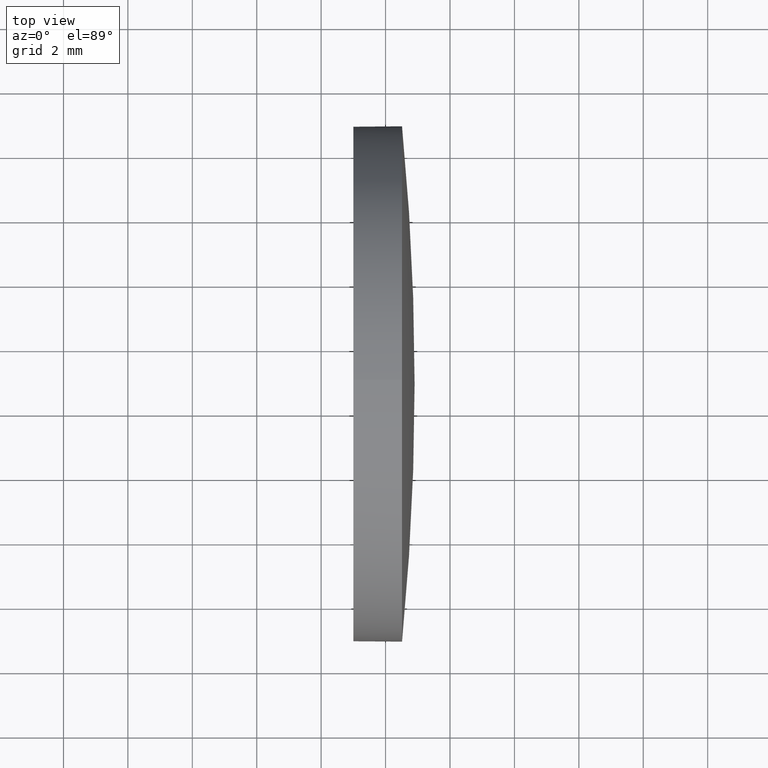
[diagram: clean part render]
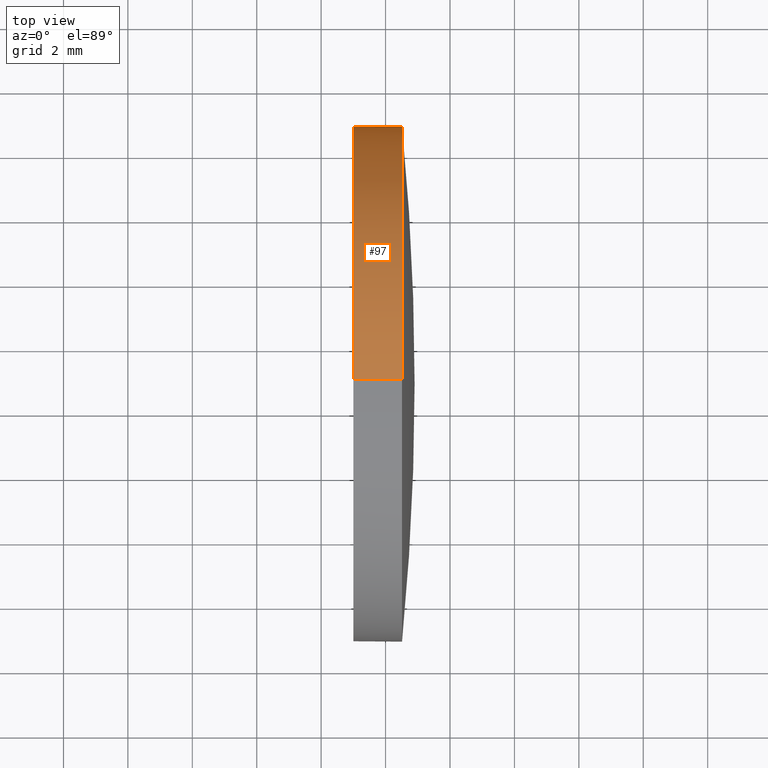
[diagram: same view with one face highlighted and labeled with its STEP entity id]
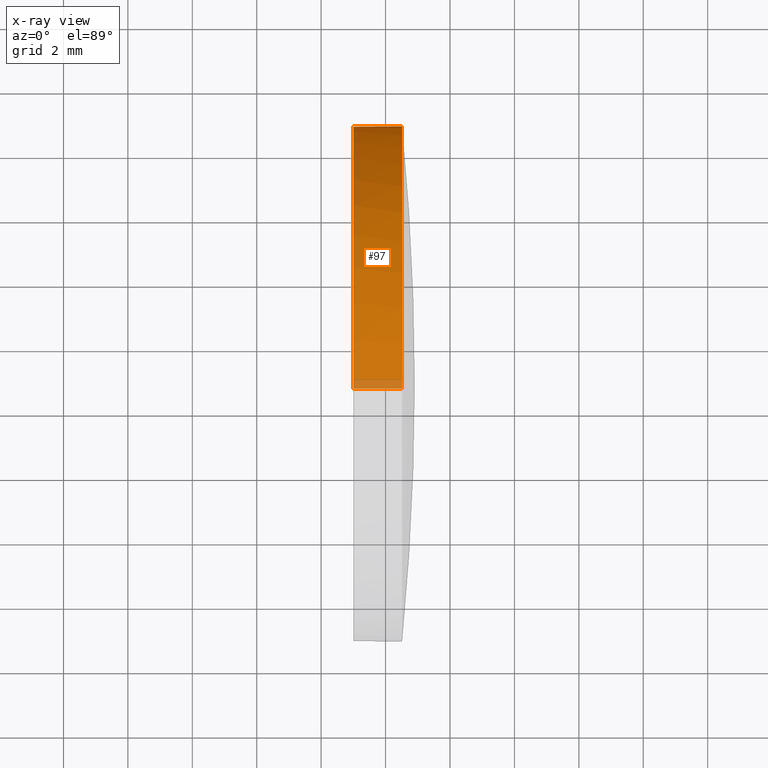
[diagram: x-ray of the same camera — body ghosted, the highlighted face saturated]
A machine part, top view. The second image highlights one B-rep face of the part: STEP entity #97.
The next image is the same camera in x-ray: the body ghosted, the highlighted face saturated — about 3% of this face is hidden behind the body in this view.
In plain terms, the highlighted cylindrical surface (partial cylindrical patch) has radius 8 mm, axis along (-1, -0, -0).
Its self-contained STEP definition (entity closure, byte-faithful):
#1 = EDGE_CURVE ( 'NONE', #40, #123, #94, .T. ) ;
#3 = CARTESIAN_POINT ( 'NONE',  ( 680.5108542720965900, 360.8508104614297200, 7.999999999999952000 ) ) ;
#4 = CARTESIAN_POINT ( 'NONE',  ( 679.0008542720967200, 360.8508104614297200, -7.999999999999952000 ) ) ;
#7 = EDGE_CURVE ( 'NONE', #138, #136, #69, .T. ) ;
#9 = CARTESIAN_POINT ( 'NONE',  ( 680.5108542720965900, 360.8508104614297200, -7.999999999999952000 ) ) ;
#11 = CARTESIAN_POINT ( 'NONE',  ( 679.0008542720967200, 360.8508104614297200, 7.999999999999952000 ) ) ;
#17 = CIRCLE ( 'NONE', #37, 7.999999999999952000 ) ;
#21 = EDGE_LOOP ( 'NONE', ( #135, #170, #155, #30, #137 ) ) ;
#30 = ORIENTED_EDGE ( 'NONE', *, *, #7, .F. ) ;
#37 = AXIS2_PLACEMENT_3D ( 'NONE', #52, #71, #174 ) ;
#39 = AXIS2_PLACEMENT_3D ( 'NONE', #106, #64, #171 ) ;
#40 = VERTEX_POINT ( 'NONE', #9 ) ;
#42 = DIRECTION ( 'NONE',  ( -1.000000000000000000, -0.0000000000000000000, -0.0000000000000000000 ) ) ;
#48 = AXIS2_PLACEMENT_3D ( 'NONE', #180, #42, #96 ) ;
#52 = CARTESIAN_POINT ( 'NONE',  ( 680.5108542720965900, 360.8508104614297200, 0.0000000000000000000 ) ) ;
#64 = DIRECTION ( 'NONE',  ( -1.000000000000000000, -0.0000000000000000000, -0.0000000000000000000 ) ) ;
#68 = AXIS2_PLACEMENT_3D ( 'NONE', #182, #149, #165 ) ;
#69 = LINE ( 'NONE', #127, #132 ) ;
#71 = DIRECTION ( 'NONE',  ( -1.000000000000000000, -0.0000000000000000000, -0.0000000000000000000 ) ) ;
#73 = CARTESIAN_POINT ( 'NONE',  ( 675.2755856517344500, 360.8508104614297200, -7.999999999999952000 ) ) ;
#88 = DIRECTION ( 'NONE',  ( -1.000000000000000000, -0.0000000000000000000, -0.0000000000000000000 ) ) ;
#94 = LINE ( 'NONE', #73, #101 ) ;
#96 = DIRECTION ( 'NONE',  ( 0.0000000000000000000, 0.0000000000000000000, 1.000000000000000000 ) ) ;
#97 = ADVANCED_FACE ( 'NONE', ( #104 ), #111, .T. ) ;
#99 = EDGE_CURVE ( 'NONE', #138, #154, #17, .T. ) ;
#101 = VECTOR ( 'NONE', #88, 1000.000000000000000 ) ;
#104 = FACE_OUTER_BOUND ( 'NONE', #21, .T. ) ;
#106 = CARTESIAN_POINT ( 'NONE',  ( 680.5108542720965900, 360.8508104614297200, 0.0000000000000000000 ) ) ;
#111 = CYLINDRICAL_SURFACE ( 'NONE', #68, 7.999999999999952000 ) ;
#119 = CIRCLE ( 'NONE', #39, 7.999999999999952000 ) ;
#123 = VERTEX_POINT ( 'NONE', #4 ) ;
#127 = CARTESIAN_POINT ( 'NONE',  ( 675.2755856517344500, 360.8508104614297200, 7.999999999999952000 ) ) ;
#132 = VECTOR ( 'NONE', #166, 1000.000000000000000 ) ;
#135 = ORIENTED_EDGE ( 'NONE', *, *, #139, .T. ) ;
#136 = VERTEX_POINT ( 'NONE', #11 ) ;
#137 = ORIENTED_EDGE ( 'NONE', *, *, #99, .T. ) ;
#138 = VERTEX_POINT ( 'NONE', #3 ) ;
#139 = EDGE_CURVE ( 'NONE', #154, #40, #119, .T. ) ;
#143 = CIRCLE ( 'NONE', #48, 7.999999999999952000 ) ;
#149 = DIRECTION ( 'NONE',  ( -1.000000000000000000, -0.0000000000000000000, -0.0000000000000000000 ) ) ;
#154 = VERTEX_POINT ( 'NONE', #181 ) ;
#155 = ORIENTED_EDGE ( 'NONE', *, *, #159, .F. ) ;
#159 = EDGE_CURVE ( 'NONE', #136, #123, #143, .T. ) ;
#165 = DIRECTION ( 'NONE',  ( 0.0000000000000000000, 0.0000000000000000000, 1.000000000000000000 ) ) ;
#166 = DIRECTION ( 'NONE',  ( -1.000000000000000000, -0.0000000000000000000, -0.0000000000000000000 ) ) ;
#170 = ORIENTED_EDGE ( 'NONE', *, *, #1, .T. ) ;
#171 = DIRECTION ( 'NONE',  ( 0.0000000000000000000, 0.0000000000000000000, 1.000000000000000000 ) ) ;
#174 = DIRECTION ( 'NONE',  ( 0.0000000000000000000, 0.0000000000000000000, 1.000000000000000000 ) ) ;
#180 = CARTESIAN_POINT ( 'NONE',  ( 679.0008542720967200, 360.8508104614297200, 0.0000000000000000000 ) ) ;
#181 = CARTESIAN_POINT ( 'NONE',  ( 680.5108542720965900, 368.8508104614298300, 9.797174393178378000E-016 ) ) ;
#182 = CARTESIAN_POINT ( 'NONE',  ( 675.2755856517344500, 360.8508104614297200, 0.0000000000000000000 ) ) ;